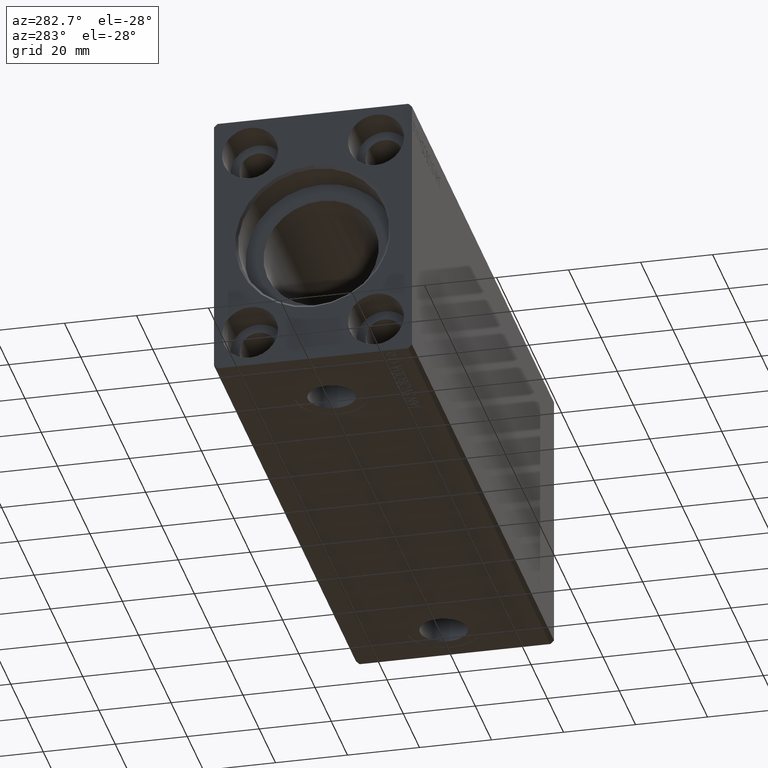
[diagram: clean part render]
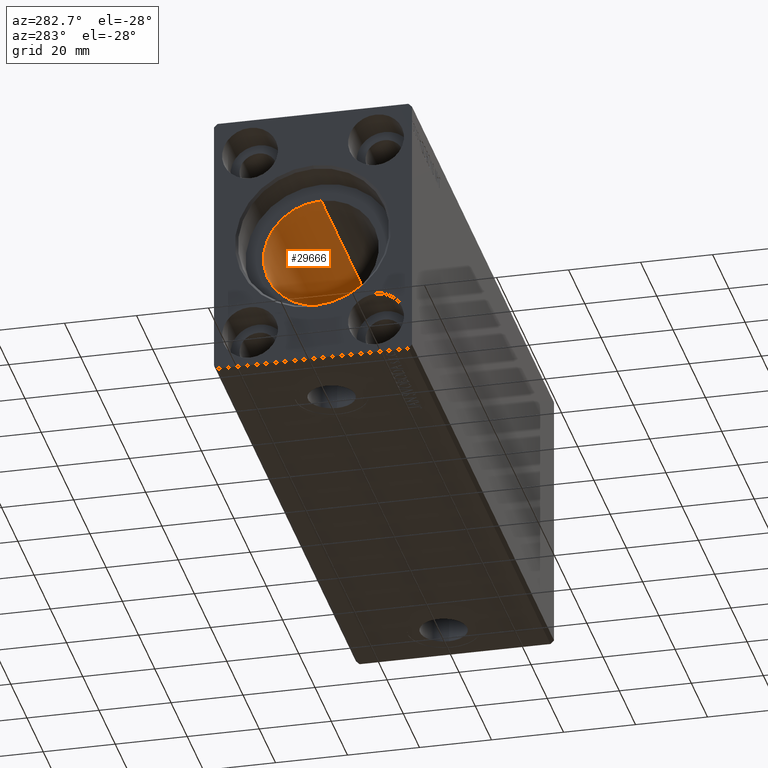
[diagram: same view with one face highlighted and labeled with its STEP entity id]
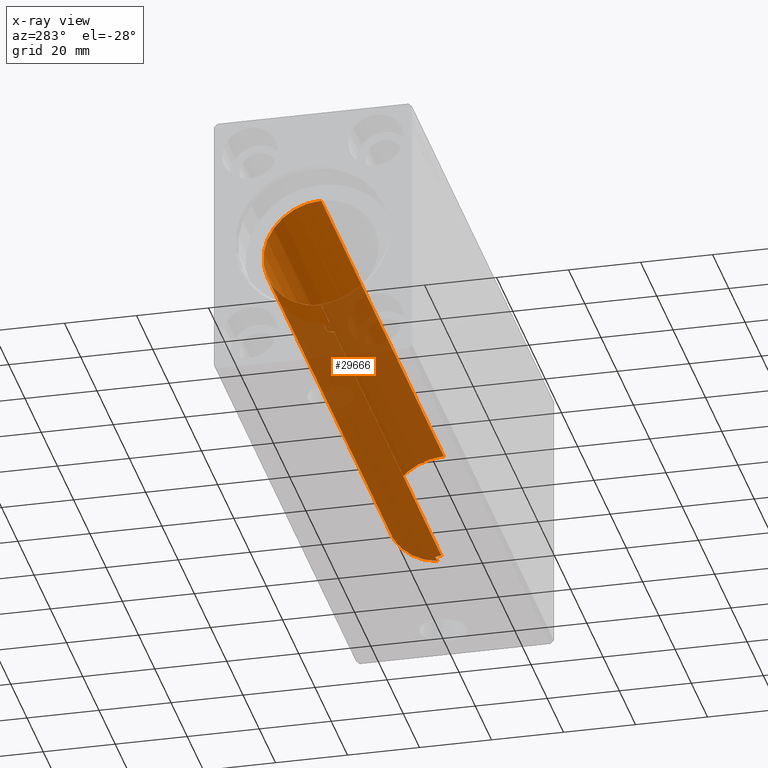
[diagram: x-ray of the same camera — body ghosted, the highlighted face saturated]
A machine part, auxiliary view. The second image highlights one B-rep face of the part: STEP entity #29666.
The next image is the same camera in x-ray: the body ghosted, the highlighted face saturated — about 70% of this face is hidden behind the body in this view.
In plain terms, the highlighted cylindrical surface (partial cylindrical patch) has radius 16 mm, axis along (-1, -0, -0).
Its self-contained STEP definition (entity closure, byte-faithful):
#87 = CARTESIAN_POINT ( 'NONE',  ( 25.75000000000000355, 0.1629275007895856497, -16.00000000000000000 ) ) ;
#100 = EDGE_CURVE ( 'NONE', #6524, #5580, #29796, .T. ) ;
#169 = CARTESIAN_POINT ( 'NONE',  ( 158.5452919902454028, 1.250171241089533591, -15.95169574138015633 ) ) ;
#308 = CARTESIAN_POINT ( 'NONE',  ( 161.1999999999999886, 1.959434878635765131E-15, -16.00000000000000000 ) ) ;
#388 = CARTESIAN_POINT ( 'NONE',  ( 158.7082842211412128, 1.528580496451069415, -15.92742812959714982 ) ) ;
#586 = EDGE_CURVE ( 'NONE', #29741, #30552, #3381, .T. ) ;
#1026 = CARTESIAN_POINT ( 'NONE',  ( 158.4763581403533124, 1.104555034037125516, -15.96255602784426486 ) ) ;
#1043 = B_SPLINE_CURVE_WITH_KNOTS ( 'NONE', 3,
 ( #27091, #9853, #30120, #16735, #7054, #1026, #169, #388, #13291, #10704 ),
 .UNSPECIFIED., .F., .F.,
 ( 4, 2, 2, 2, 4 ),
 ( 0.001937515079377271580, 0.002421672136522718191, 0.002905829193668164369, 0.003389986250813610980, 0.003874143307959057592 ),
 .UNSPECIFIED. ) ;
#1942 = CARTESIAN_POINT ( 'NONE',  ( 10.00000000000000888, 1.959434878635765131E-15, -16.00000000000000000 ) ) ;
#2328 = FACE_OUTER_BOUND ( 'NONE', #20626, .T. ) ;
#2335 = CIRCLE ( 'NONE', #9920, 16.00000000000000000 ) ;
#3004 = CARTESIAN_POINT ( 'NONE',  ( 20.47635814035335855, 1.104555034037125516, -15.96255602784426841 ) ) ;
#3102 = VECTOR ( 'NONE', #37056, 1000.000000000000000 ) ;
#3381 = LINE ( 'NONE', #19520, #11583 ) ;
#3441 = LINE ( 'NONE', #29732, #3102 ) ;
#3539 = LINE ( 'NONE', #308, #25508 ) ;
#3965 = CARTESIAN_POINT ( 'NONE',  ( 25.67843830749630740, 0.6438297815899759469, -15.98783114994251697 ) ) ;
#5393 = ORIENTED_EDGE ( 'NONE', *, *, #586, .F. ) ;
#5580 = VERTEX_POINT ( 'NONE', #11955 ) ;
#6389 = ORIENTED_EDGE ( 'NONE', *, *, #36380, .F. ) ;
#6524 = VERTEX_POINT ( 'NONE', #21930 ) ;
#6623 = CARTESIAN_POINT ( 'NONE',  ( 161.1999999999999886, 1.786057109949259036, -15.89999999999998970 ) ) ;
#7054 = CARTESIAN_POINT ( 'NONE',  ( 158.3640082416886230, 0.8002234119869096052, -15.98070334047259777 ) ) ;
#7161 = AXIS2_PLACEMENT_3D ( 'NONE', #18469, #31636, #37477 ) ;
#7186 = CARTESIAN_POINT ( 'NONE',  ( 25.30299467954352011, 1.537922561208759253, -15.92787311163533914 ) ) ;
#7434 = LINE ( 'NONE', #20357, #20751 ) ;
#7873 = ORIENTED_EDGE ( 'NONE', *, *, #30312, .F. ) ;
#9408 = DIRECTION ( 'NONE',  ( -1.000000000000000000, -0.000000000000000000, -0.000000000000000000 ) ) ;
#9853 = CARTESIAN_POINT ( 'NONE',  ( 158.2500000000000000, 0.1628529246558443611, -15.99999999999999645 ) ) ;
#9920 = AXIS2_PLACEMENT_3D ( 'NONE', #11851, #41801, #24990 ) ;
#10704 = CARTESIAN_POINT ( 'NONE',  ( 158.9089476333674043, 1.786057109949259036, -15.89999999999998970 ) ) ;
#11017 = EDGE_CURVE ( 'NONE', #26201, #34588, #12325, .T. ) ;
#11552 = VERTEX_POINT ( 'NONE', #1942 ) ;
#11583 = VECTOR ( 'NONE', #9408, 1000.000000000000000 ) ;
#11626 = CARTESIAN_POINT ( 'NONE',  ( 20.25000000000000000, 0.1628529246558463039, -16.00000000000000000 ) ) ;
#11851 = CARTESIAN_POINT ( 'NONE',  ( 10.00000000000000888, 0.000000000000000000, 0.000000000000000000 ) ) ;
#11955 = CARTESIAN_POINT ( 'NONE',  ( 25.75000000000000000, 1.966672448372719994E-15, -16.00000000000000000 ) ) ;
#12325 = B_SPLINE_CURVE_WITH_KNOTS ( 'NONE', 3,
 ( #41156, #11626, #21530, #12686, #32524, #3004, #25833, #12472, #31884, #21950 ),
 .UNSPECIFIED., .F., .F.,
 ( 4, 2, 2, 2, 4 ),
 ( 0.001937515079377276567, 0.002421672136522722528, 0.002905829193668168706, 0.003389986250813614450, 0.003874143307959060194 ),
 .UNSPECIFIED. ) ;
#12472 = CARTESIAN_POINT ( 'NONE',  ( 20.70828422114123057, 1.528580496451064752, -15.92742812959714982 ) ) ;
#12686 = CARTESIAN_POINT ( 'NONE',  ( 20.32103554224154607, 0.6416550435731651625, -15.98791951246752241 ) ) ;
#13291 = CARTESIAN_POINT ( 'NONE',  ( 158.8030230027346477, 1.662044306363392954, -15.91393043707981647 ) ) ;
#13851 = CARTESIAN_POINT ( 'NONE',  ( 25.73536268302067853, 0.3260974502564771282, -15.99746611559688780 ) ) ;
#16172 = LINE ( 'NONE', #29340, #34577 ) ;
#16735 = CARTESIAN_POINT ( 'NONE',  ( 158.3210355422414466, 0.6416550435731682711, -15.98791951246751886 ) ) ;
#18469 = CARTESIAN_POINT ( 'NONE',  ( 161.1999999999999886, 0.000000000000000000, 0.000000000000000000 ) ) ;
#19520 = CARTESIAN_POINT ( 'NONE',  ( 161.1999999999999886, 1.786057109949259036, -15.89999999999998970 ) ) ;
#19881 = CARTESIAN_POINT ( 'NONE',  ( 25.46669777805105639, 1.258673386848676135, -15.95335904956524864 ) ) ;
#20010 = EDGE_CURVE ( 'NONE', #26201, #11552, #3539, .T. ) ;
#20248 = ORIENTED_EDGE ( 'NONE', *, *, #24025, .F. ) ;
#20357 = CARTESIAN_POINT ( 'NONE',  ( 161.1999999999999886, 0.000000000000000000, 16.00000000000000000 ) ) ;
#20626 = EDGE_LOOP ( 'NONE', ( #6389, #21045, #5393, #7873, #36076, #37079, #37859, #33871, #20248, #30766 ) ) ;
#20751 = VECTOR ( 'NONE', #33525, 1000.000000000000000 ) ;
#21045 = ORIENTED_EDGE ( 'NONE', *, *, #36641, .T. ) ;
#21530 = CARTESIAN_POINT ( 'NONE',  ( 20.26435230214253380, 0.3237335850403343929, -15.99751506009603652 ) ) ;
#21930 = CARTESIAN_POINT ( 'NONE',  ( 25.09105236663257088, 1.786057109949259036, -15.89999999999998970 ) ) ;
#21950 = CARTESIAN_POINT ( 'NONE',  ( 20.90894763336742912, 1.786057109949259036, -15.89999999999998970 ) ) ;
#22734 = EDGE_CURVE ( 'NONE', #39734, #35220, #7434, .T. ) ;
#24025 = EDGE_CURVE ( 'NONE', #6524, #34588, #16172, .T. ) ;
#24915 = DIRECTION ( 'NONE',  ( -1.000000000000000000, 0.000000000000000000, 0.000000000000000000 ) ) ;
#24990 = DIRECTION ( 'NONE',  ( 0.000000000000000000, 0.000000000000000000, 1.000000000000000000 ) ) ;
#25198 = CARTESIAN_POINT ( 'NONE',  ( 10.00000000000000888, 0.000000000000000000, 16.00000000000000000 ) ) ;
#25508 = VECTOR ( 'NONE', #26587, 1000.000000000000000 ) ;
#25730 = CIRCLE ( 'NONE', #36770, 16.00000000000000000 ) ;
#25833 = CARTESIAN_POINT ( 'NONE',  ( 20.54529199024537789, 1.250171241089528928, -15.95169574138015278 ) ) ;
#26090 = DIRECTION ( 'NONE',  ( -1.000000000000000000, -0.000000000000000000, -0.000000000000000000 ) ) ;
#26201 = VERTEX_POINT ( 'NONE', #35366 ) ;
#26587 = DIRECTION ( 'NONE',  ( -1.000000000000000000, -0.000000000000000000, -0.000000000000000000 ) ) ;
#26799 = CARTESIAN_POINT ( 'NONE',  ( 161.1999999999999886, 0.000000000000000000, 16.00000000000000000 ) ) ;
#26953 = CARTESIAN_POINT ( 'NONE',  ( 158.9089476333674043, 1.786057109949259036, -15.89999999999998970 ) ) ;
#27052 = CARTESIAN_POINT ( 'NONE',  ( 20.90894763336742912, 1.786057109949259036, -15.89999999999998970 ) ) ;
#27091 = CARTESIAN_POINT ( 'NONE',  ( 158.2499999999999716, 1.952197214168045357E-15, -16.00000000000000000 ) ) ;
#29243 = EDGE_CURVE ( 'NONE', #35220, #11552, #2335, .T. ) ;
#29340 = CARTESIAN_POINT ( 'NONE',  ( 161.1999999999999886, 1.786057109949259036, -15.89999999999998970 ) ) ;
#29604 = CARTESIAN_POINT ( 'NONE',  ( 25.63617786229477957, 0.7997846173174859574, -15.98073294566550473 ) ) ;
#29666 = ADVANCED_FACE ( 'NONE', ( #2328 ), #34873, .F. ) ;
#29732 = CARTESIAN_POINT ( 'NONE',  ( 161.1999999999999886, 1.959434878635765131E-15, -16.00000000000000000 ) ) ;
#29741 = VERTEX_POINT ( 'NONE', #6623 ) ;
#29796 = B_SPLINE_CURVE_WITH_KNOTS ( 'NONE', 3,
 ( #30246, #7186, #19881, #29604, #3965, #13851, #87, #33045 ),
 .UNSPECIFIED., .F., .F.,
 ( 4, 2, 2, 4 ),
 ( 0.000000000000000000, 0.0009687575396886391509, 0.001453136309532957046, 0.001937515079377275266 ),
 .UNSPECIFIED. ) ;
#29841 = VERTEX_POINT ( 'NONE', #30541 ) ;
#30120 = CARTESIAN_POINT ( 'NONE',  ( 158.2643523021425551, 0.3237335850403372794, -15.99751506009604007 ) ) ;
#30246 = CARTESIAN_POINT ( 'NONE',  ( 25.09105236663257088, 1.786057109949259036, -15.89999999999998970 ) ) ;
#30312 = EDGE_CURVE ( 'NONE', #39734, #29741, #25730, .T. ) ;
#30541 = CARTESIAN_POINT ( 'NONE',  ( 158.2499999999999716, 1.952197214168045357E-15, -16.00000000000000000 ) ) ;
#30552 = VERTEX_POINT ( 'NONE', #26953 ) ;
#30766 = ORIENTED_EDGE ( 'NONE', *, *, #100, .T. ) ;
#31636 = DIRECTION ( 'NONE',  ( -1.000000000000000000, -0.000000000000000000, -0.000000000000000000 ) ) ;
#31884 = CARTESIAN_POINT ( 'NONE',  ( 20.80302300273467964, 1.662044306363391177, -15.91393043707981292 ) ) ;
#32524 = CARTESIAN_POINT ( 'NONE',  ( 20.36400824168861234, 0.8002234119869107154, -15.98070334047259777 ) ) ;
#32622 = DIRECTION ( 'NONE',  ( 0.000000000000000000, 0.000000000000000000, 1.000000000000000000 ) ) ;
#33045 = CARTESIAN_POINT ( 'NONE',  ( 25.75000000000000000, 1.966672448372719994E-15, -16.00000000000000000 ) ) ;
#33525 = DIRECTION ( 'NONE',  ( -1.000000000000000000, -0.000000000000000000, -0.000000000000000000 ) ) ;
#33871 = ORIENTED_EDGE ( 'NONE', *, *, #11017, .T. ) ;
#34577 = VECTOR ( 'NONE', #26090, 1000.000000000000000 ) ;
#34588 = VERTEX_POINT ( 'NONE', #27052 ) ;
#34873 = CYLINDRICAL_SURFACE ( 'NONE', #7161, 16.00000000000000000 ) ;
#35045 = CARTESIAN_POINT ( 'NONE',  ( 161.1999999999999886, 0.000000000000000000, 0.000000000000000000 ) ) ;
#35220 = VERTEX_POINT ( 'NONE', #25198 ) ;
#35366 = CARTESIAN_POINT ( 'NONE',  ( 20.25000000000000000, 1.952197298178576320E-15, -16.00000000000000000 ) ) ;
#36076 = ORIENTED_EDGE ( 'NONE', *, *, #22734, .T. ) ;
#36380 = EDGE_CURVE ( 'NONE', #29841, #5580, #3441, .T. ) ;
#36641 = EDGE_CURVE ( 'NONE', #29841, #30552, #1043, .T. ) ;
#36770 = AXIS2_PLACEMENT_3D ( 'NONE', #35045, #24915, #32622 ) ;
#37056 = DIRECTION ( 'NONE',  ( -1.000000000000000000, -0.000000000000000000, -0.000000000000000000 ) ) ;
#37079 = ORIENTED_EDGE ( 'NONE', *, *, #29243, .T. ) ;
#37477 = DIRECTION ( 'NONE',  ( 0.000000000000000000, 0.000000000000000000, 1.000000000000000000 ) ) ;
#37859 = ORIENTED_EDGE ( 'NONE', *, *, #20010, .F. ) ;
#39734 = VERTEX_POINT ( 'NONE', #26799 ) ;
#41156 = CARTESIAN_POINT ( 'NONE',  ( 20.25000000000000000, 1.952197298178576320E-15, -16.00000000000000000 ) ) ;
#41801 = DIRECTION ( 'NONE',  ( -1.000000000000000000, 0.000000000000000000, 0.000000000000000000 ) ) ;